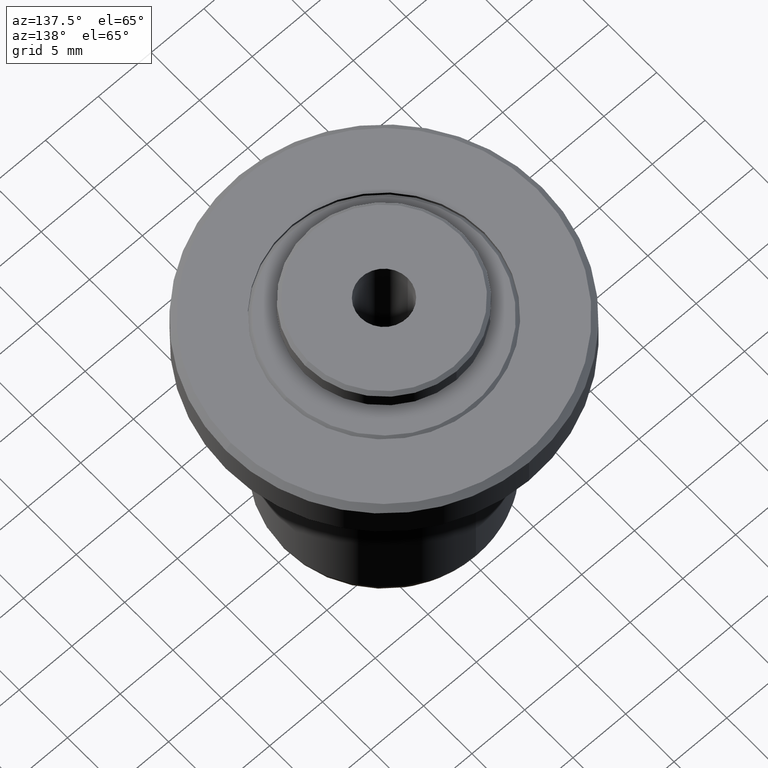
[diagram: clean part render]
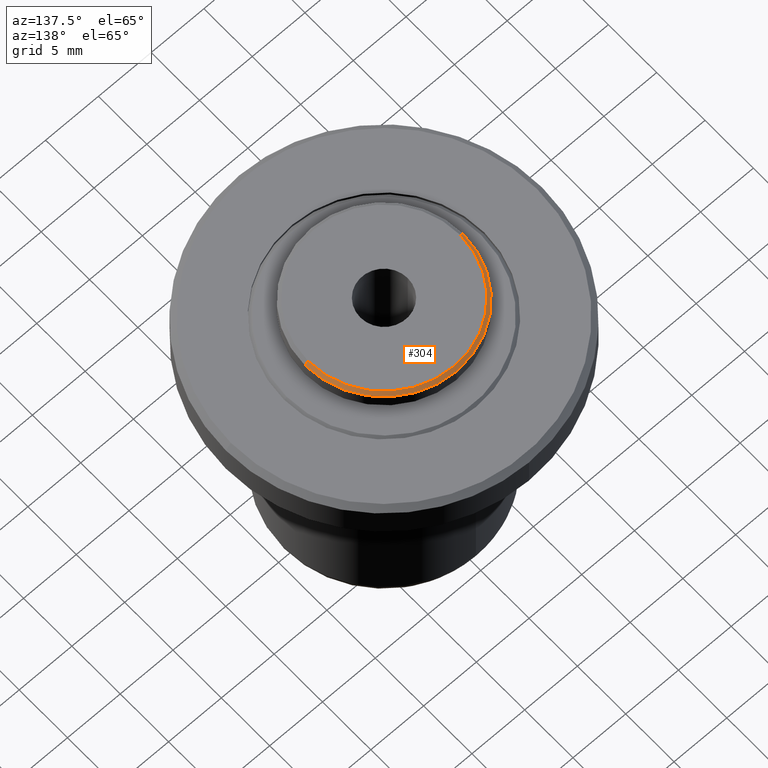
[diagram: same view with one face highlighted and labeled with its STEP entity id]
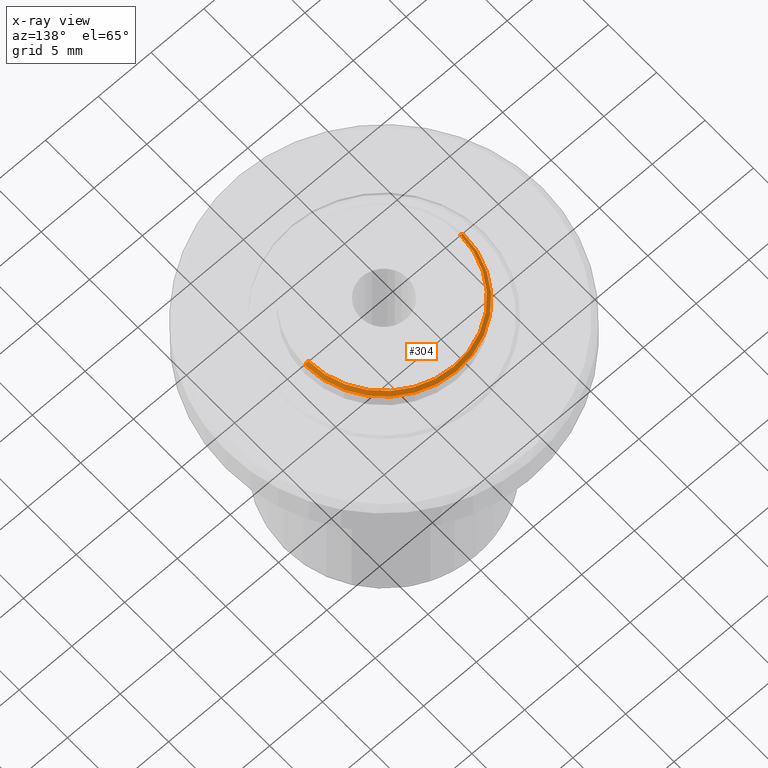
[diagram: x-ray of the same camera — body ghosted, the highlighted face saturated]
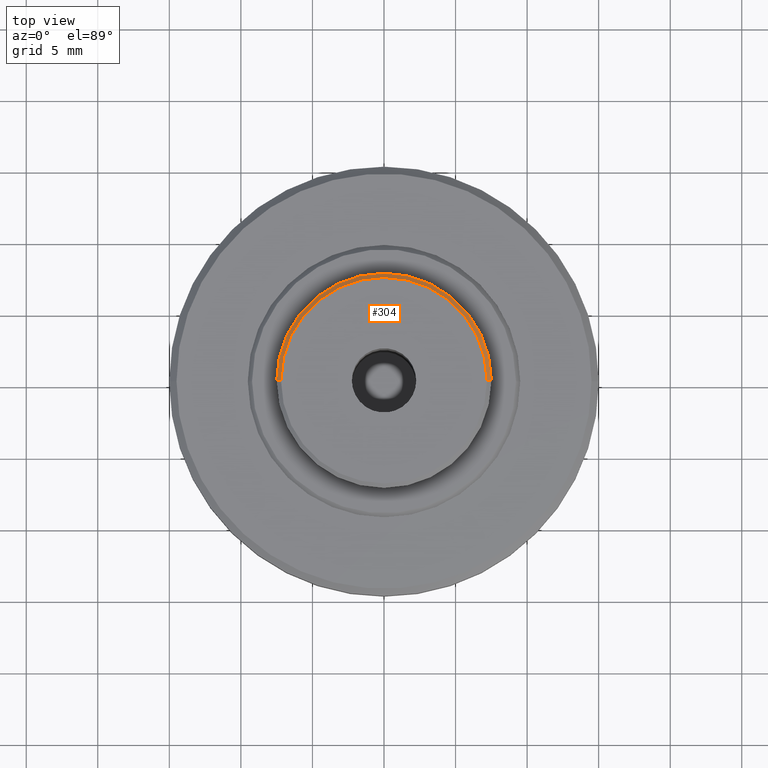
[diagram: same view with one face highlighted and labeled with its STEP entity id]
A machine part, auxiliary view. The second image highlights one B-rep face of the part: STEP entity #304.
The next image is the same camera in x-ray: the body ghosted, the highlighted face saturated — about 0% of this face is hidden behind the body in this view.
A second angle (top view) of the same face is appended — the face is thin or edge-on in the first view.
In plain terms, the highlighted conical surface has half-angle 45 deg.
Its self-contained STEP definition (entity closure, byte-faithful):
#21 = CARTESIAN_POINT ( 'NONE',  ( -7.200000000000001100, 0.0000000000000000000, 15.75000000000000000 ) ) ;
#84 = CARTESIAN_POINT ( 'NONE',  ( 0.0000000000000000000, 0.0000000000000000000, 15.45000000000000100 ) ) ;
#96 = AXIS2_PLACEMENT_3D ( 'NONE', #1360, #350, #1519 ) ;
#113 = CARTESIAN_POINT ( 'NONE',  ( 0.0000000000000000000, 7.500000000000000000, 15.45000000000000100 ) ) ;
#234 = VECTOR ( 'NONE', #1681, 1000.000000000000000 ) ;
#250 = AXIS2_PLACEMENT_3D ( 'NONE', #299, #1462, #461 ) ;
#251 = DIRECTION ( 'NONE',  ( -1.000000000000000000, 0.0000000000000000000, 0.0000000000000000000 ) ) ;
#277 = DIRECTION ( 'NONE',  ( -1.000000000000000000, 0.0000000000000000000, 0.0000000000000000000 ) ) ;
#299 = CARTESIAN_POINT ( 'NONE',  ( 0.0000000000000000000, 0.0000000000000000000, 15.45000000000000100 ) ) ;
#304 = ADVANCED_FACE ( 'NONE', ( #1353 ), #2143, .T. ) ;
#324 = CARTESIAN_POINT ( 'NONE',  ( 7.200000000000001100, 8.817456953860944300E-016, 15.75000000000000000 ) ) ;
#350 = DIRECTION ( 'NONE',  ( -0.0000000000000000000, -0.0000000000000000000, 1.000000000000000000 ) ) ;
#461 = DIRECTION ( 'NONE',  ( -1.000000000000000000, 0.0000000000000000000, 0.0000000000000000000 ) ) ;
#467 = EDGE_LOOP ( 'NONE', ( #1206, #902, #1908, #1186, #1592 ) ) ;
#484 = DIRECTION ( 'NONE',  ( 0.7071067811865485700, 8.659560562354946400E-017, -0.7071067811865465700 ) ) ;
#515 = EDGE_CURVE ( 'NONE', #1269, #1670, #688, .T. ) ;
#607 = EDGE_CURVE ( 'NONE', #2148, #1269, #930, .T. ) ;
#659 = CIRCLE ( 'NONE', #96, 7.200000000000000200 ) ;
#664 = VERTEX_POINT ( 'NONE', #2153 ) ;
#688 = CIRCLE ( 'NONE', #1755, 7.500000000000000000 ) ;
#815 = EDGE_CURVE ( 'NONE', #1827, #664, #659, .T. ) ;
#816 = EDGE_CURVE ( 'NONE', #664, #1670, #1870, .T. ) ;
#876 = LINE ( 'NONE', #324, #1274 ) ;
#902 = ORIENTED_EDGE ( 'NONE', *, *, #1477, .T. ) ;
#930 = CIRCLE ( 'NONE', #250, 7.500000000000000000 ) ;
#1111 = CARTESIAN_POINT ( 'NONE',  ( 0.0000000000000000000, 0.0000000000000000000, 15.75000000000000000 ) ) ;
#1186 = ORIENTED_EDGE ( 'NONE', *, *, #515, .T. ) ;
#1206 = ORIENTED_EDGE ( 'NONE', *, *, #815, .F. ) ;
#1228 = AXIS2_PLACEMENT_3D ( 'NONE', #1111, #2133, #277 ) ;
#1257 = DIRECTION ( 'NONE',  ( -0.0000000000000000000, -0.0000000000000000000, 1.000000000000000000 ) ) ;
#1269 = VERTEX_POINT ( 'NONE', #113 ) ;
#1274 = VECTOR ( 'NONE', #484, 1000.000000000000000 ) ;
#1353 = FACE_OUTER_BOUND ( 'NONE', #467, .T. ) ;
#1360 = CARTESIAN_POINT ( 'NONE',  ( 0.0000000000000000000, 0.0000000000000000000, 15.75000000000000000 ) ) ;
#1438 = CARTESIAN_POINT ( 'NONE',  ( 7.500000000000000000, 9.184850993605147900E-016, 15.45000000000000100 ) ) ;
#1462 = DIRECTION ( 'NONE',  ( -0.0000000000000000000, -0.0000000000000000000, 1.000000000000000000 ) ) ;
#1477 = EDGE_CURVE ( 'NONE', #1827, #2148, #876, .T. ) ;
#1519 = DIRECTION ( 'NONE',  ( -1.000000000000000000, 0.0000000000000000000, 0.0000000000000000000 ) ) ;
#1592 = ORIENTED_EDGE ( 'NONE', *, *, #816, .F. ) ;
#1670 = VERTEX_POINT ( 'NONE', #1987 ) ;
#1681 = DIRECTION ( 'NONE',  ( -0.7071067811865485700, 0.0000000000000000000, -0.7071067811865465700 ) ) ;
#1755 = AXIS2_PLACEMENT_3D ( 'NONE', #84, #1257, #251 ) ;
#1827 = VERTEX_POINT ( 'NONE', #1865 ) ;
#1865 = CARTESIAN_POINT ( 'NONE',  ( 7.200000000000000200, 9.001153973733045600E-016, 15.75000000000000000 ) ) ;
#1870 = LINE ( 'NONE', #21, #234 ) ;
#1908 = ORIENTED_EDGE ( 'NONE', *, *, #607, .T. ) ;
#1987 = CARTESIAN_POINT ( 'NONE',  ( -7.500000000000000000, 0.0000000000000000000, 15.45000000000000100 ) ) ;
#2133 = DIRECTION ( 'NONE',  ( 0.0000000000000000000, 0.0000000000000000000, -1.000000000000000000 ) ) ;
#2143 = CONICAL_SURFACE ( 'NONE', #1228, 7.200000000000001100, 0.7853981633974497200 ) ;
#2148 = VERTEX_POINT ( 'NONE', #1438 ) ;
#2153 = CARTESIAN_POINT ( 'NONE',  ( -7.200000000000000200, 0.0000000000000000000, 15.75000000000000000 ) ) ;